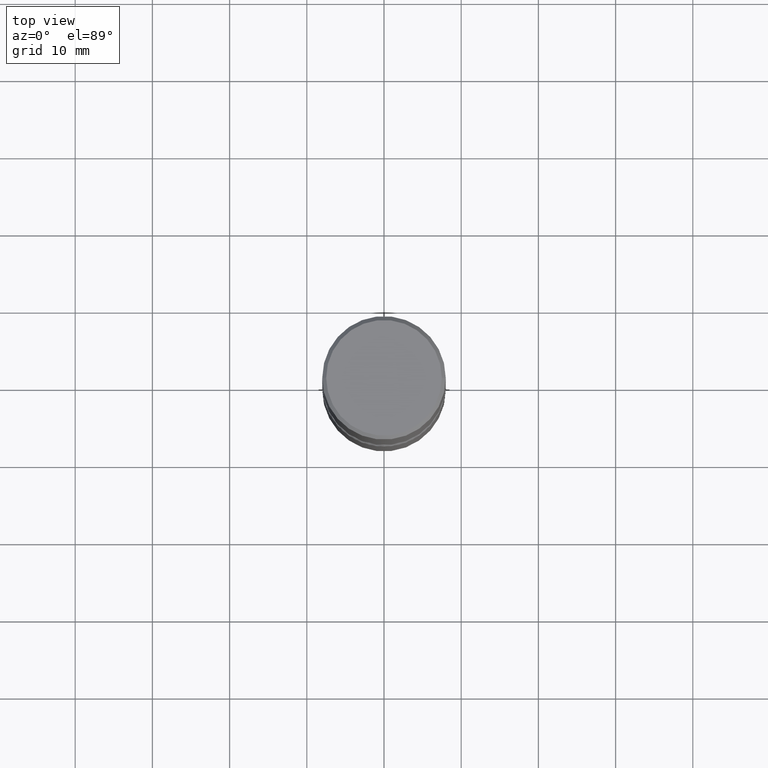
[diagram: clean part render]
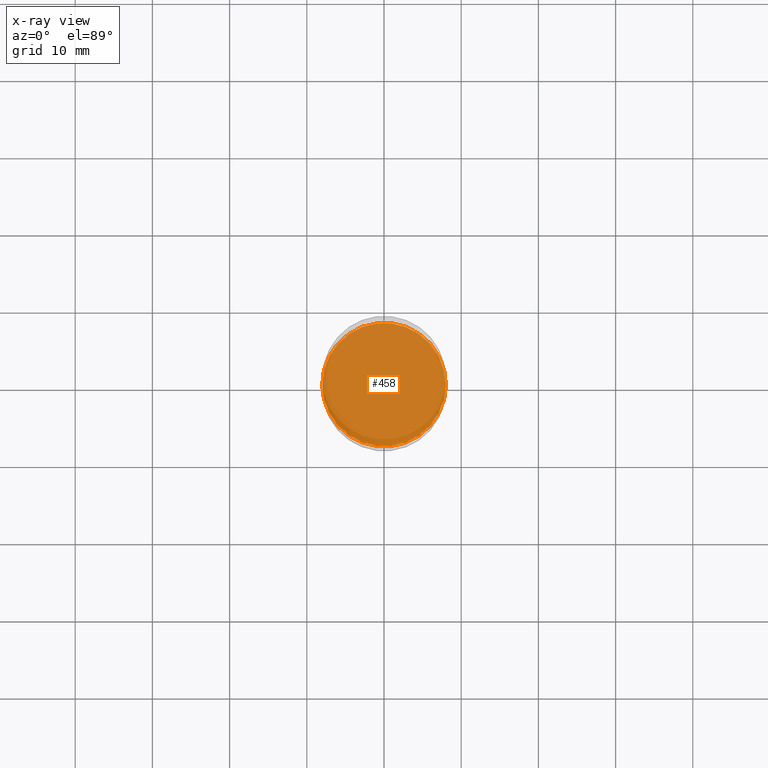
[diagram: x-ray — body ghosted, one internal face saturated and labeled with its STEP entity id]
A machine part, top view, then the same camera in x-ray: the body is ghosted and one INTERNAL B-rep face — a face not visible from any outside direction — is saturated and labeled: STEP entity #458.
In plain terms, the highlighted planar face has unit normal (0, -0, -1).
Its self-contained STEP definition (entity closure, byte-faithful):
#1 = DIRECTION ( 'NONE',  ( 2.438088387897960049E-29, -3.491481338843145188E-15, -1.000000000000000000 ) ) ;
#23 = DIRECTION ( 'NONE',  ( 1.000000000000000000, -6.982962677686264344E-15, 0.000000000000000000 ) ) ;
#26 = DIRECTION ( 'NONE',  ( 1.000000000000000000, -6.982962677686264344E-15, 0.000000000000000000 ) ) ;
#63 = VERTEX_POINT ( 'NONE', #76 ) ;
#76 = CARTESIAN_POINT ( 'NONE',  ( -0.3149500000000002298, -7.383271631039733137E-15, -2.047199999999999243 ) ) ;
#83 = FACE_OUTER_BOUND ( 'NONE', #410, .T. ) ;
#130 = CIRCLE ( 'NONE', #200, 0.3149500000000002298 ) ;
#196 = AXIS2_PLACEMENT_3D ( 'NONE', #399, #352, #26 ) ;
#200 = AXIS2_PLACEMENT_3D ( 'NONE', #494, #350, #23 ) ;
#228 = ORIENTED_EDGE ( 'NONE', *, *, #532, .T. ) ;
#230 = ORIENTED_EDGE ( 'NONE', *, *, #294, .T. ) ;
#243 = PLANE ( 'NONE',  #436 ) ;
#290 = CARTESIAN_POINT ( 'NONE',  ( 0.3149500000000002298, -9.347044692216974917E-15, -2.047199999999999243 ) ) ;
#294 = EDGE_CURVE ( 'NONE', #63, #449, #423, .T. ) ;
#330 = DIRECTION ( 'NONE',  ( -1.000000000000000000, 6.982962677686265922E-15, -4.876176775795935793E-29 ) ) ;
#331 = CARTESIAN_POINT ( 'NONE',  ( 1.244624770094737813E-28, 3.506576687062802322E-15, -2.047200000000000131 ) ) ;
#350 = DIRECTION ( 'NONE',  ( -2.445468806185136597E-29, 3.491481338843145583E-15, 1.000000000000000000 ) ) ;
#352 = DIRECTION ( 'NONE',  ( -2.445468806185136597E-29, 3.491481338843145583E-15, 1.000000000000000000 ) ) ;
#399 = CARTESIAN_POINT ( 'NONE',  ( 5.006363740022209438E-29, -7.147760596879685046E-15, -2.047199999999999243 ) ) ;
#410 = EDGE_LOOP ( 'NONE', ( #228, #230 ) ) ;
#423 = CIRCLE ( 'NONE', #196, 0.3149500000000002298 ) ;
#436 = AXIS2_PLACEMENT_3D ( 'NONE', #331, #1, #330 ) ;
#449 = VERTEX_POINT ( 'NONE', #290 ) ;
#458 = ADVANCED_FACE ( 'NONE', ( #83 ), #243, .F. ) ;
#494 = CARTESIAN_POINT ( 'NONE',  ( 5.006363740022209438E-29, -7.147760596879685046E-15, -2.047199999999999243 ) ) ;
#532 = EDGE_CURVE ( 'NONE', #449, #63, #130, .T. ) ;